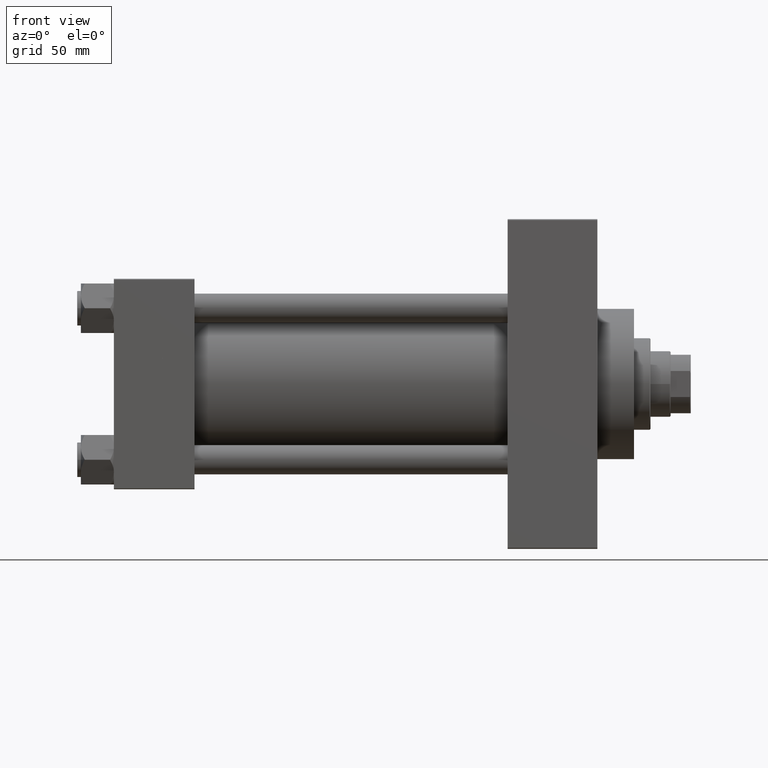
[diagram: clean part render]
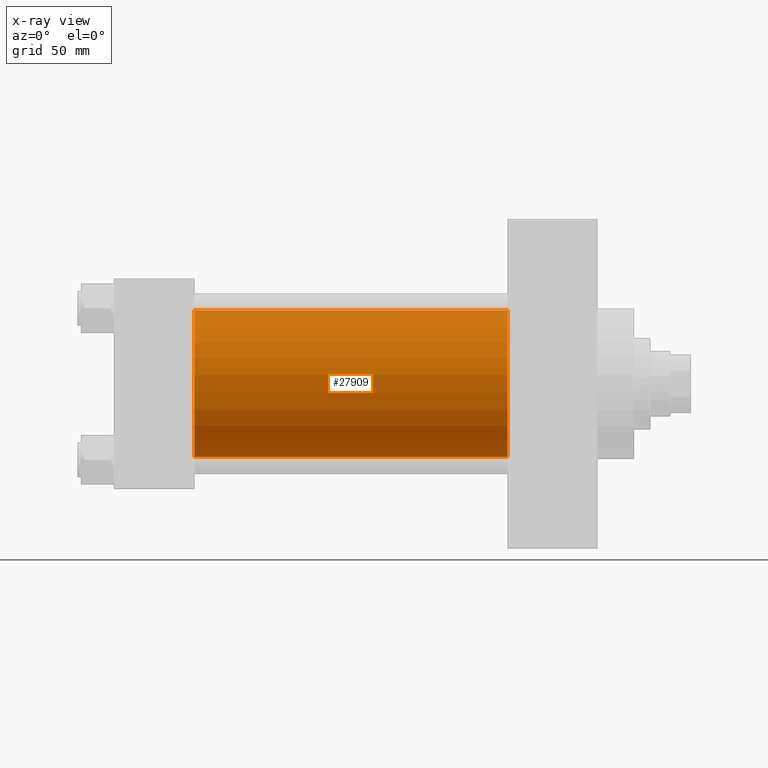
[diagram: x-ray — body ghosted, one internal face saturated and labeled with its STEP entity id]
A machine part, front view, then the same camera in x-ray: the body is ghosted and one INTERNAL B-rep face — a face not visible from any outside direction — is saturated and labeled: STEP entity #27909.
In plain terms, the highlighted cylindrical surface (partial cylindrical patch) has radius 40 mm, axis along (-1, -0, -0).
Its self-contained STEP definition (entity closure, byte-faithful):
#456 = DIRECTION ( 'NONE',  ( 1.000000000000000000, 0.000000000000000000, 0.000000000000000000 ) ) ;
#2667 = VECTOR ( 'NONE', #48931, 1000.000000000000000 ) ;
#2834 = LINE ( 'NONE', #25995, #2667 ) ;
#2895 = CARTESIAN_POINT ( 'NONE',  ( 215.0000000000000284, 2.296501982624201990E-15, -40.00000000000000000 ) ) ;
#3060 = CARTESIAN_POINT ( 'NONE',  ( 215.0000000000000284, -2.602085213965210642E-15, 40.00000000000000000 ) ) ;
#7498 = CARTESIAN_POINT ( 'NONE',  ( 44.00000000000000000, -2.602085213965210642E-15, 0.000000000000000000 ) ) ;
#8009 = CYLINDRICAL_SURFACE ( 'NONE', #41529, 40.00000000000000000 ) ;
#9000 = VERTEX_POINT ( 'NONE', #15569 ) ;
#12911 = EDGE_LOOP ( 'NONE', ( #19960, #47361, #33786, #45345 ) ) ;
#13518 = VERTEX_POINT ( 'NONE', #23578 ) ;
#13700 = CIRCLE ( 'NONE', #39446, 40.00000000000000000 ) ;
#13759 = VERTEX_POINT ( 'NONE', #2895 ) ;
#15569 = CARTESIAN_POINT ( 'NONE',  ( 44.00000000000000000, -2.602085213965210642E-15, 40.00000000000000000 ) ) ;
#17228 = EDGE_CURVE ( 'NONE', #13759, #18443, #2834, .T. ) ;
#17892 = CIRCLE ( 'NONE', #37991, 40.00000000000000000 ) ;
#18443 = VERTEX_POINT ( 'NONE', #34656 ) ;
#19568 = CARTESIAN_POINT ( 'NONE',  ( 215.0000000000000284, -2.602085213965210642E-15, 0.000000000000000000 ) ) ;
#19960 = ORIENTED_EDGE ( 'NONE', *, *, #40415, .T. ) ;
#23578 = CARTESIAN_POINT ( 'NONE',  ( 215.0000000000000284, -2.602085213965210642E-15, 40.00000000000000000 ) ) ;
#25995 = CARTESIAN_POINT ( 'NONE',  ( 215.0000000000000284, 2.296501982624201990E-15, -40.00000000000000000 ) ) ;
#26396 = FACE_OUTER_BOUND ( 'NONE', #12911, .T. ) ;
#27648 = DIRECTION ( 'NONE',  ( 0.000000000000000000, 0.000000000000000000, -1.000000000000000000 ) ) ;
#27909 = ADVANCED_FACE ( 'NONE', ( #26396 ), #8009, .F. ) ;
#30167 = DIRECTION ( 'NONE',  ( 0.000000000000000000, 0.000000000000000000, 1.000000000000000000 ) ) ;
#33275 = LINE ( 'NONE', #3060, #34084 ) ;
#33786 = ORIENTED_EDGE ( 'NONE', *, *, #39713, .F. ) ;
#34084 = VECTOR ( 'NONE', #48648, 1000.000000000000000 ) ;
#34656 = CARTESIAN_POINT ( 'NONE',  ( 44.00000000000000000, 2.296501982624201990E-15, -40.00000000000000000 ) ) ;
#34887 = DIRECTION ( 'NONE',  ( 0.000000000000000000, 0.000000000000000000, -1.000000000000000000 ) ) ;
#35142 = CARTESIAN_POINT ( 'NONE',  ( 215.0000000000000284, -2.602085213965210642E-15, 0.000000000000000000 ) ) ;
#37991 = AXIS2_PLACEMENT_3D ( 'NONE', #35142, #42450, #34887 ) ;
#39446 = AXIS2_PLACEMENT_3D ( 'NONE', #7498, #456, #27648 ) ;
#39713 = EDGE_CURVE ( 'NONE', #9000, #18443, #13700, .T. ) ;
#40415 = EDGE_CURVE ( 'NONE', #13518, #13759, #17892, .T. ) ;
#41529 = AXIS2_PLACEMENT_3D ( 'NONE', #19568, #41737, #30167 ) ;
#41737 = DIRECTION ( 'NONE',  ( -1.000000000000000000, -0.000000000000000000, -0.000000000000000000 ) ) ;
#42444 = EDGE_CURVE ( 'NONE', #13518, #9000, #33275, .T. ) ;
#42450 = DIRECTION ( 'NONE',  ( 1.000000000000000000, 0.000000000000000000, 0.000000000000000000 ) ) ;
#45345 = ORIENTED_EDGE ( 'NONE', *, *, #42444, .F. ) ;
#47361 = ORIENTED_EDGE ( 'NONE', *, *, #17228, .T. ) ;
#48648 = DIRECTION ( 'NONE',  ( -1.000000000000000000, -0.000000000000000000, -0.000000000000000000 ) ) ;
#48931 = DIRECTION ( 'NONE',  ( -1.000000000000000000, -0.000000000000000000, -0.000000000000000000 ) ) ;